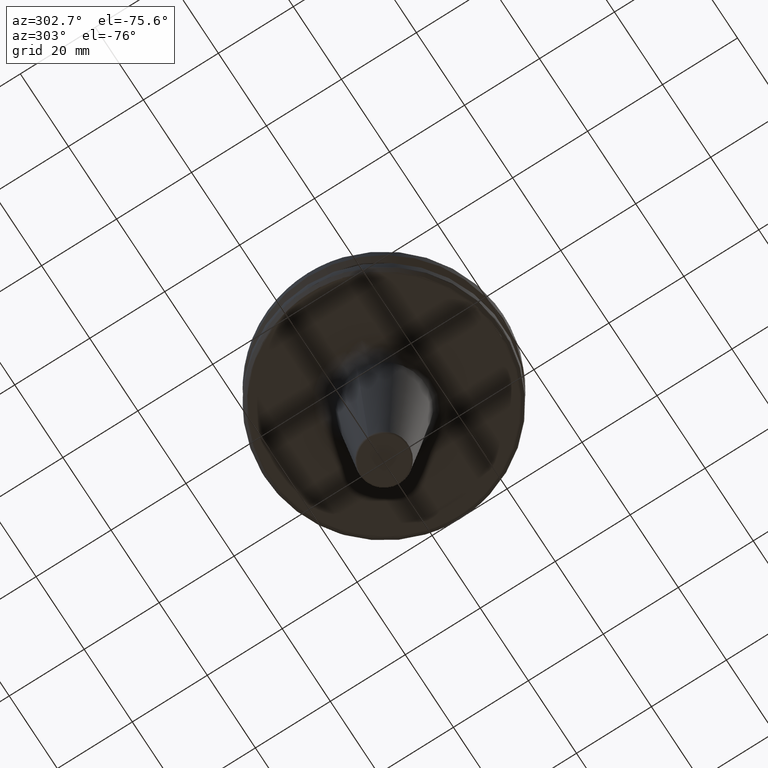
[diagram: clean part render]
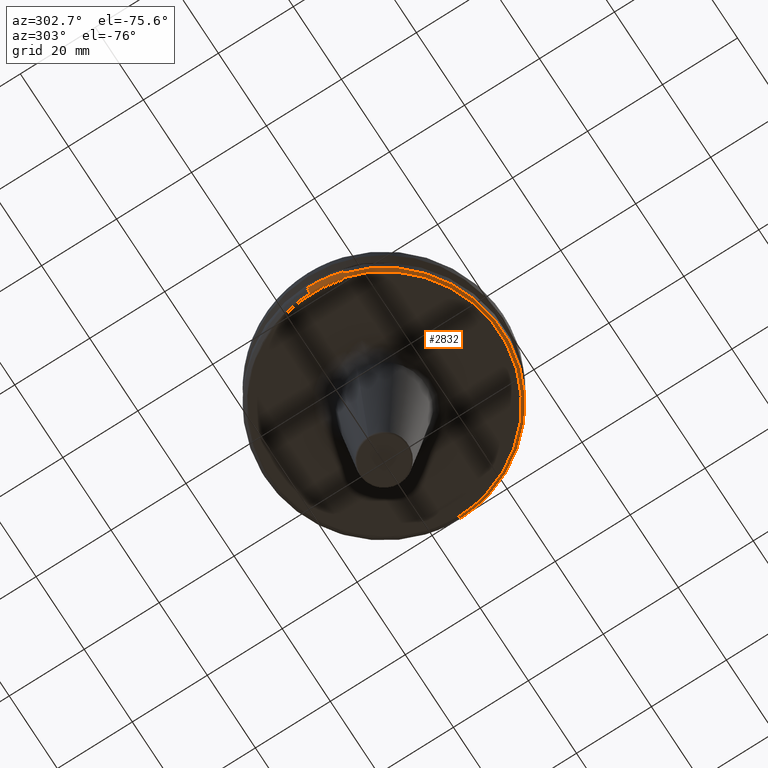
[diagram: same view with one face highlighted and labeled with its STEP entity id]
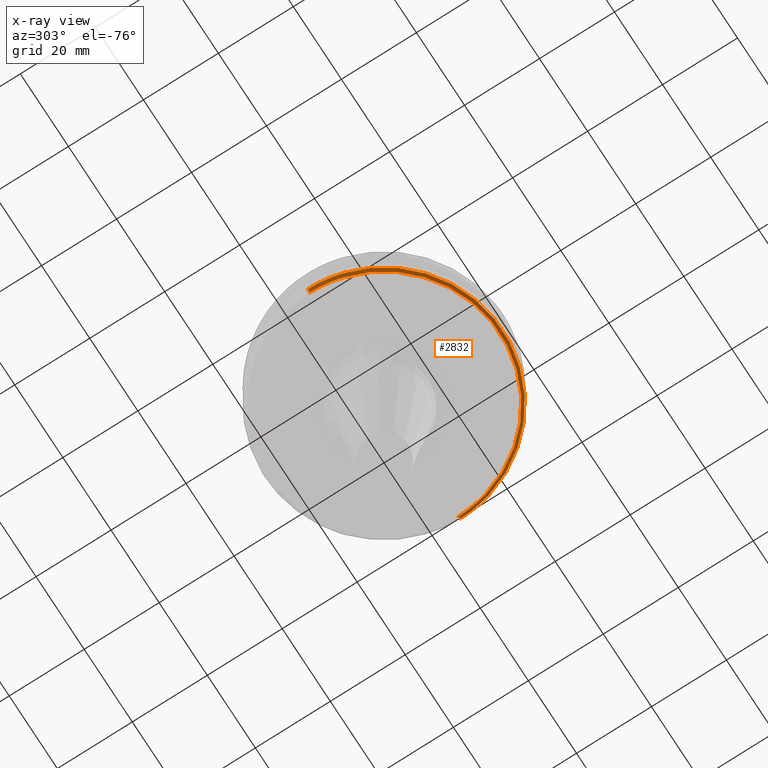
[diagram: x-ray of the same camera — body ghosted, the highlighted face saturated]
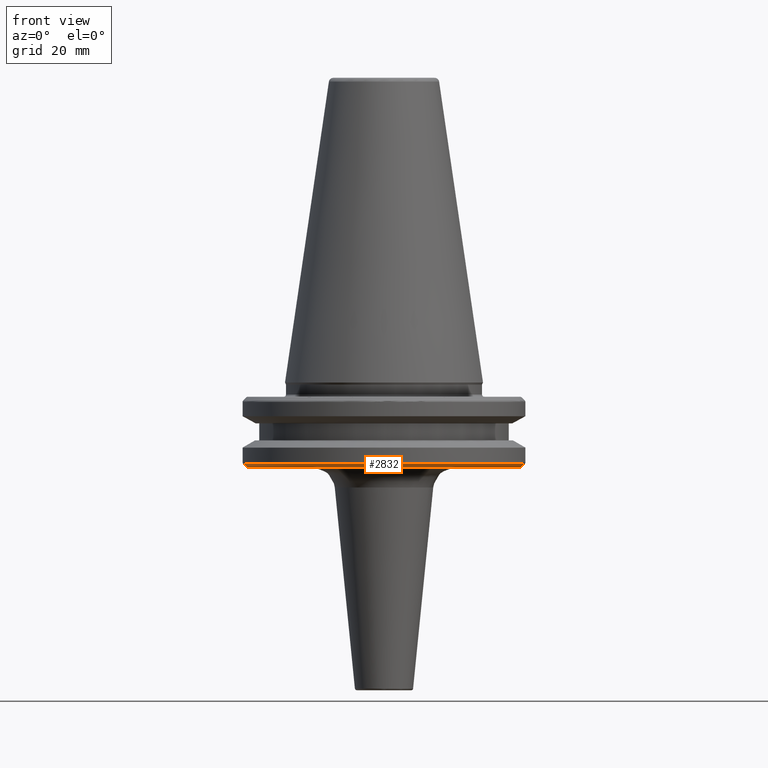
[diagram: same view with one face highlighted and labeled with its STEP entity id]
A machine part, auxiliary view. The second image highlights one B-rep face of the part: STEP entity #2832.
The next image is the same camera in x-ray: the body ghosted, the highlighted face saturated — about 0% of this face is hidden behind the body in this view.
A second angle (front view) of the same face is appended — the face is thin or edge-on in the first view.
In plain terms, the highlighted conical surface has half-angle 45 deg.
Its self-contained STEP definition (entity closure, byte-faithful):
#87 = EDGE_CURVE ( 'NONE', #102, #2859, #317, .T. ) ;
#90 = DIRECTION ( 'NONE',  ( 1.000000000000000000, 0.0000000000000000000, 0.0000000000000000000 ) ) ;
#102 = VERTEX_POINT ( 'NONE', #2285 ) ;
#299 = CARTESIAN_POINT ( 'NONE',  ( -29.79897479801665800, -8.050000000000000700, -18.98284271247460700 ) ) ;
#317 = LINE ( 'NONE', #1784, #1835 ) ;
#323 = EDGE_CURVE ( 'NONE', #1822, #1787, #1805, .T. ) ;
#345 = ORIENTED_EDGE ( 'NONE', *, *, #2268, .F. ) ;
#368 = CARTESIAN_POINT ( 'NONE',  ( 31.63284271247462300, 0.0000000000000000000, -18.21715728752540300 ) ) ;
#376 = DIRECTION ( 'NONE',  ( 1.000000000000000000, 0.0000000000000000000, 0.0000000000000000000 ) ) ;
#402 = VERTEX_POINT ( 'NONE', #2574 ) ;
#487 = ORIENTED_EDGE ( 'NONE', *, *, #323, .T. ) ;
#497 = CARTESIAN_POINT ( 'NONE',  ( 31.63284271247463800, 0.0000000000000000000, -18.21715728752538900 ) ) ;
#534 = EDGE_CURVE ( 'NONE', #2593, #402, #1490, .T. ) ;
#574 = ORIENTED_EDGE ( 'NONE', *, *, #87, .F. ) ;
#579 = CARTESIAN_POINT ( 'NONE',  ( 0.0000000000000000000, 0.0000000000000000000, -18.21715728752540300 ) ) ;
#611 = CARTESIAN_POINT ( 'NONE',  ( 0.0000000000000000000, 0.0000000000000000000, -18.21715728752538900 ) ) ;
#649 = CIRCLE ( 'NONE', #2725, 30.86715728508024600 ) ;
#772 = CARTESIAN_POINT ( 'NONE',  ( 0.0000000000000000000, 0.0000000000000000000, -18.98284271491974800 ) ) ;
#788 = CARTESIAN_POINT ( 'NONE',  ( 0.0000000000000000000, 0.0000000000000000000, -18.98284271247461100 ) ) ;
#895 = DIRECTION ( 'NONE',  ( 1.000000000000000000, 0.0000000000000000000, 0.0000000000000000000 ) ) ;
#897 = DIRECTION ( 'NONE',  ( -0.0000000000000000000, -0.0000000000000000000, 1.000000000000000000 ) ) ;
#924 = CARTESIAN_POINT ( 'NONE',  ( 30.86715728508025000, 0.0000000000000000000, -18.98284271491974800 ) ) ;
#1018 = ORIENTED_EDGE ( 'NONE', *, *, #534, .T. ) ;
#1042 = EDGE_CURVE ( 'NONE', #2925, #1822, #2983, .T. ) ;
#1061 = DIRECTION ( 'NONE',  ( -0.0000000000000000000, -0.0000000000000000000, 1.000000000000000000 ) ) ;
#1073 = DIRECTION ( 'NONE',  ( 1.000000000000000000, 0.0000000000000000000, 0.0000000000000000000 ) ) ;
#1078 = DIRECTION ( 'NONE',  ( -0.0000000000000000000, -0.0000000000000000000, 1.000000000000000000 ) ) ;
#1101 = VERTEX_POINT ( 'NONE', #299 ) ;
#1113 = DIRECTION ( 'NONE',  ( 1.000000000000000000, 0.0000000000000000000, 0.0000000000000000000 ) ) ;
#1145 = ORIENTED_EDGE ( 'NONE', *, *, #2087, .F. ) ;
#1177 = CARTESIAN_POINT ( 'NONE',  ( 0.0000000000000000000, 0.0000000000000000000, -18.21715728752540300 ) ) ;
#1223 = EDGE_CURVE ( 'NONE', #102, #1101, #649, .T. ) ;
#1234 = CIRCLE ( 'NONE', #2059, 31.63284271247460900 ) ;
#1310 = DIRECTION ( 'NONE',  ( -0.0000000000000000000, -0.0000000000000000000, -1.000000000000000000 ) ) ;
#1362 = AXIS2_PLACEMENT_3D ( 'NONE', #1615, #1061, #90 ) ;
#1464 = AXIS2_PLACEMENT_3D ( 'NONE', #1177, #2647, #2040 ) ;
#1478 = CARTESIAN_POINT ( 'NONE',  ( 30.46793370986785000, -8.505395553603394300, -18.21715728752538900 ) ) ;
#1490 = CIRCLE ( 'NONE', #2837, 31.63284271247462300 ) ;
#1615 = CARTESIAN_POINT ( 'NONE',  ( 0.0000000000000000000, 0.0000000000000000000, -18.98284271491974800 ) ) ;
#1659 = AXIS2_PLACEMENT_3D ( 'NONE', #2366, #1078, #2572 ) ;
#1669 = CARTESIAN_POINT ( 'NONE',  ( 29.79897479548386100, -8.050000000000000700, -18.98284271491974800 ) ) ;
#1737 = DIRECTION ( 'NONE',  ( 0.7071067811865602300, 0.0000000000000000000, 0.7071067811865346900 ) ) ;
#1784 = CARTESIAN_POINT ( 'NONE',  ( -31.63284271247462300, 3.873905957576372200E-015, -18.21715728752540300 ) ) ;
#1787 = VERTEX_POINT ( 'NONE', #497 ) ;
#1805 = LINE ( 'NONE', #368, #1858 ) ;
#1822 = VERTEX_POINT ( 'NONE', #924 ) ;
#1835 = VECTOR ( 'NONE', #2022, 1000.000000000000000 ) ;
#1858 = VECTOR ( 'NONE', #1737, 1000.000000000000000 ) ;
#1863 = CIRCLE ( 'NONE', #1659, 31.63284271247460900 ) ;
#1926 = ORIENTED_EDGE ( 'NONE', *, *, #1223, .T. ) ;
#2022 = DIRECTION ( 'NONE',  ( -0.7071067811865602300, 8.659560562355089400E-017, 0.7071067811865346900 ) ) ;
#2031 = FACE_OUTER_BOUND ( 'NONE', #2897, .T. ) ;
#2040 = DIRECTION ( 'NONE',  ( 1.000000000000000000, 0.0000000000000000000, 0.0000000000000000000 ) ) ;
#2059 = AXIS2_PLACEMENT_3D ( 'NONE', #611, #2234, #895 ) ;
#2082 = CARTESIAN_POINT ( 'NONE',  ( -31.63284271247463800, 3.873905957576373800E-015, -18.21715728752538900 ) ) ;
#2087 = EDGE_CURVE ( 'NONE', #2925, #1101, #2820, .T. ) ;
#2209 = CONICAL_SURFACE ( 'NONE', #1464, 31.63284271247462300, 0.7853981633974664900 ) ;
#2234 = DIRECTION ( 'NONE',  ( -0.0000000000000000000, -0.0000000000000000000, 1.000000000000000000 ) ) ;
#2268 = EDGE_CURVE ( 'NONE', #2593, #1787, #1234, .T. ) ;
#2285 = CARTESIAN_POINT ( 'NONE',  ( -30.86715728508025000, 3.780136536795142700E-015, -18.98284271491974800 ) ) ;
#2344 = ORIENTED_EDGE ( 'NONE', *, *, #2662, .F. ) ;
#2361 = DIRECTION ( 'NONE',  ( -0.0000000000000000000, -0.0000000000000000000, -1.000000000000000000 ) ) ;
#2366 = CARTESIAN_POINT ( 'NONE',  ( 0.0000000000000000000, 0.0000000000000000000, -18.21715728752538900 ) ) ;
#2572 = DIRECTION ( 'NONE',  ( 1.000000000000000000, 0.0000000000000000000, 0.0000000000000000000 ) ) ;
#2574 = CARTESIAN_POINT ( 'NONE',  ( -30.44766929938764800, -8.577655408518408500, -18.21715728752540300 ) ) ;
#2593 = VERTEX_POINT ( 'NONE', #1478 ) ;
#2647 = DIRECTION ( 'NONE',  ( 0.0000000000000000000, 0.0000000000000000000, 1.000000000000000000 ) ) ;
#2662 = EDGE_CURVE ( 'NONE', #2859, #402, #1863, .T. ) ;
#2725 = AXIS2_PLACEMENT_3D ( 'NONE', #772, #897, #376 ) ;
#2820 = CIRCLE ( 'NONE', #2905, 30.86715728752539100 ) ;
#2832 = ADVANCED_FACE ( 'NONE', ( #2031 ), #2209, .T. ) ;
#2837 = AXIS2_PLACEMENT_3D ( 'NONE', #579, #1310, #1113 ) ;
#2859 = VERTEX_POINT ( 'NONE', #2082 ) ;
#2897 = EDGE_LOOP ( 'NONE', ( #574, #1926, #1145, #2952, #487, #345, #1018, #2344 ) ) ;
#2905 = AXIS2_PLACEMENT_3D ( 'NONE', #788, #2361, #1073 ) ;
#2925 = VERTEX_POINT ( 'NONE', #1669 ) ;
#2952 = ORIENTED_EDGE ( 'NONE', *, *, #1042, .T. ) ;
#2983 = CIRCLE ( 'NONE', #1362, 30.86715728508024600 ) ;